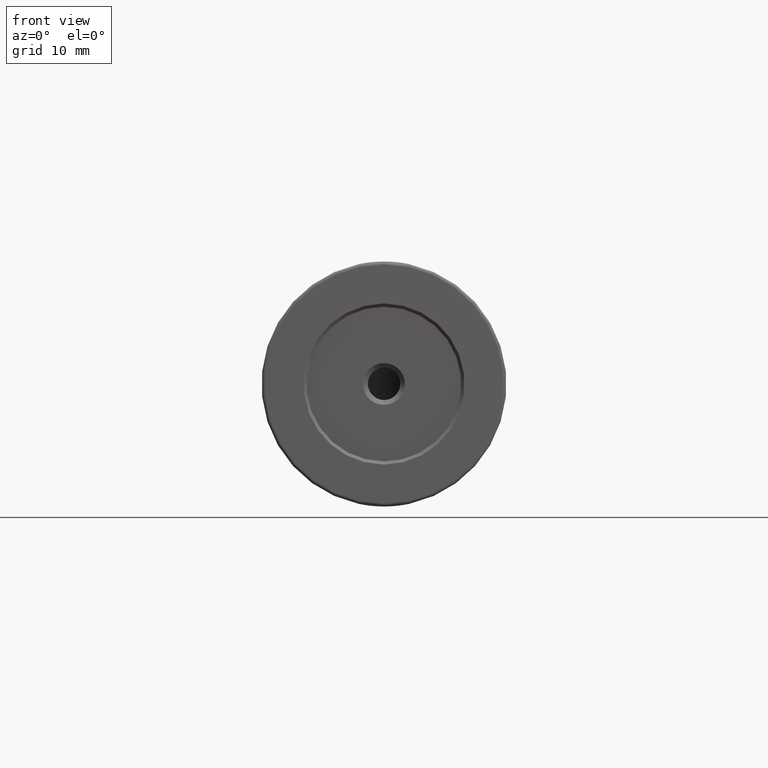
[diagram: clean part render]
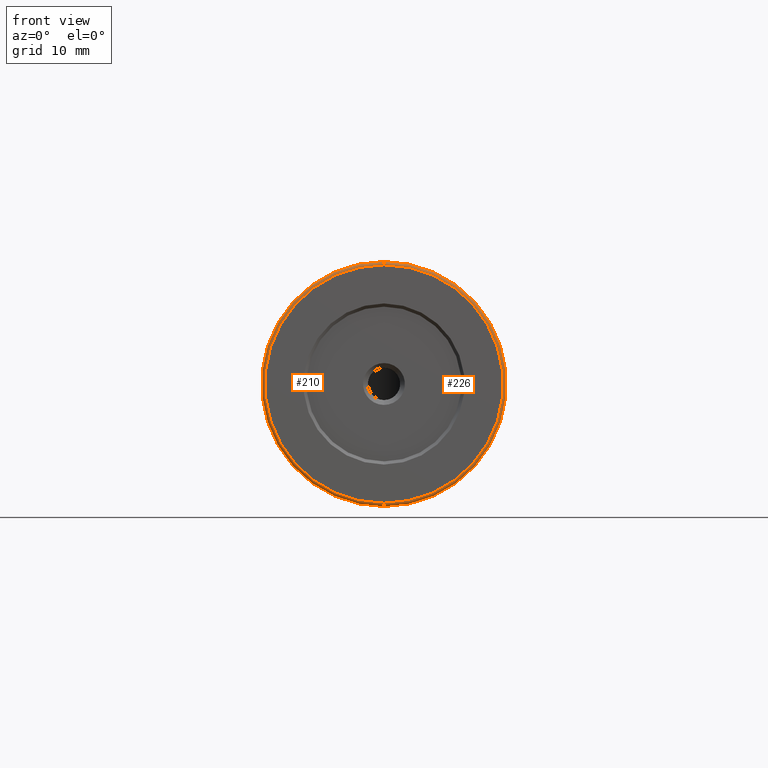
[diagram: same view with one multi-face feature highlighted, each face labeled with its STEP entity id]
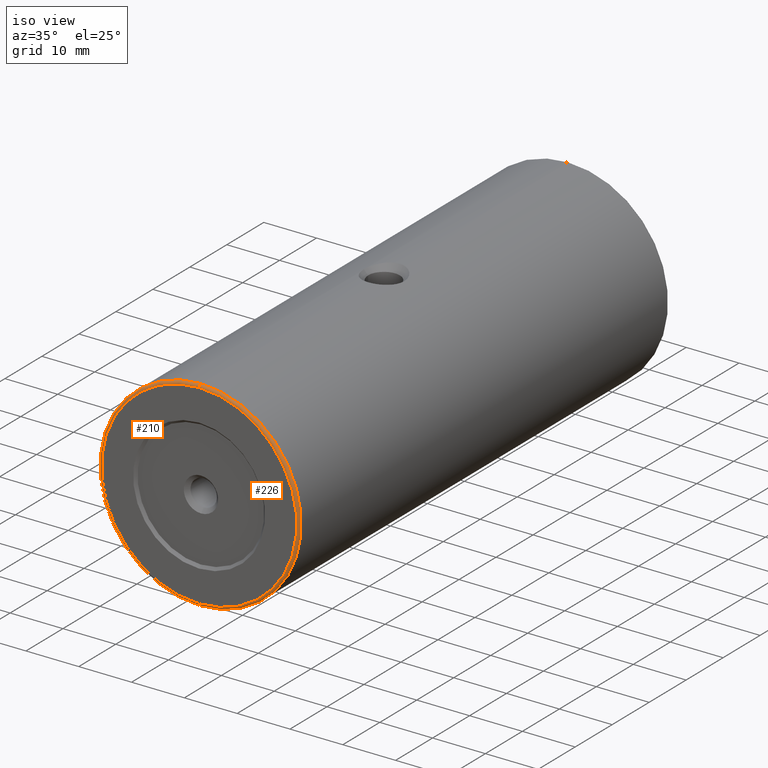
[diagram: same view with one multi-face feature highlighted, each face labeled with its STEP entity id]
A machine part, front view. The highlighted faces form ONE feature: a constant-radius fillet chain: 2 tangent blend faces with common blend radius 0.5 mm. The faces share edges in the B-rep.
A second angle (iso view) of the same feature is appended — it is thin or edge-on in the first view.
Their STEP definitions:
[1] entity #210 (Torus):
#4 = DIRECTION ( 'NONE',  ( 0.0000000000000000000, 0.0000000000000000000, 1.000000000000000000 ) ) ;
#76 = ORIENTED_EDGE ( 'NONE', *, *, #650, .F. ) ;
#78 = CARTESIAN_POINT ( 'NONE',  ( -85.22679983354142053, -53.76133999167429067, 400.0000000000000000 ) ) ;
#118 = DIRECTION ( 'NONE',  ( -1.000000000000000000, 0.0000000000000000000, 0.0000000000000000000 ) ) ;
#128 = CARTESIAN_POINT ( 'NONE',  ( -85.22679983354142053, -53.76133999167429067, 381.0000000000000000 ) ) ;
#179 = EDGE_LOOP ( 'NONE', ( #480, #184, #936, #76 ) ) ;
#184 = ORIENTED_EDGE ( 'NONE', *, *, #405, .F. ) ;
#197 = CARTESIAN_POINT ( 'NONE',  ( -85.22679983354142053, -53.76133999167429067, 381.5000000000000000 ) ) ;
#210 = ADVANCED_FACE ( 'NONE', ( #1009 ), #769, .T. ) ;
#242 = CIRCLE ( 'NONE', #379, 19.00000000000001776 ) ;
#287 = CARTESIAN_POINT ( 'NONE',  ( -85.22679983354142053, -54.26133999167429067, 418.5000000000000568 ) ) ;
#295 = CARTESIAN_POINT ( 'NONE',  ( -85.22679983354142053, -53.76133999167429067, 419.0000000000000568 ) ) ;
#320 = CIRCLE ( 'NONE', #550, 18.50000000000001776 ) ;
#346 = CIRCLE ( 'NONE', #916, 0.5000000000000004441 ) ;
#379 = AXIS2_PLACEMENT_3D ( 'NONE', #78, #395, #627 ) ;
#395 = DIRECTION ( 'NONE',  ( 0.0000000000000000000, 1.000000000000000000, 0.0000000000000000000 ) ) ;
#405 = EDGE_CURVE ( 'NONE', #908, #704, #320, .T. ) ;
#480 = ORIENTED_EDGE ( 'NONE', *, *, #845, .F. ) ;
#481 = CIRCLE ( 'NONE', #637, 0.5000000000000004441 ) ;
#486 = CARTESIAN_POINT ( 'NONE',  ( -85.22679983354142053, -54.26133999167429067, 400.0000000000000000 ) ) ;
#491 = CARTESIAN_POINT ( 'NONE',  ( -85.22679983354142053, -54.26133999167429067, 381.5000000000000000 ) ) ;
#494 = VERTEX_POINT ( 'NONE', #128 ) ;
#545 = VERTEX_POINT ( 'NONE', #295 ) ;
#549 = DIRECTION ( 'NONE',  ( 0.0000000000000000000, 1.000000000000000000, 0.0000000000000000000 ) ) ;
#550 = AXIS2_PLACEMENT_3D ( 'NONE', #486, #652, #958 ) ;
#561 = CARTESIAN_POINT ( 'NONE',  ( -85.22679983354142053, -53.76133999167429067, 400.0000000000000000 ) ) ;
#627 = DIRECTION ( 'NONE',  ( 0.0000000000000000000, 0.0000000000000000000, 1.000000000000000000 ) ) ;
#637 = AXIS2_PLACEMENT_3D ( 'NONE', #197, #899, #818 ) ;
#638 = AXIS2_PLACEMENT_3D ( 'NONE', #561, #549, #4 ) ;
#650 = EDGE_CURVE ( 'NONE', #494, #545, #242, .T. ) ;
#652 = DIRECTION ( 'NONE',  ( -0.0000000000000000000, -1.000000000000000000, -0.0000000000000000000 ) ) ;
#704 = VERTEX_POINT ( 'NONE', #491 ) ;
#769 = TOROIDAL_SURFACE ( 'NONE', #638, 18.50000000000000000, 0.5000000000000000000 ) ;
#818 = DIRECTION ( 'NONE',  ( 0.0000000000000000000, 0.0000000000000000000, -1.000000000000000000 ) ) ;
#845 = EDGE_CURVE ( 'NONE', #704, #494, #481, .T. ) ;
#847 = EDGE_CURVE ( 'NONE', #908, #545, #346, .T. ) ;
#893 = DIRECTION ( 'NONE',  ( 0.0000000000000000000, 0.0000000000000000000, 1.000000000000000000 ) ) ;
#899 = DIRECTION ( 'NONE',  ( 1.000000000000000000, -0.0000000000000000000, 1.224646799147353207E-16 ) ) ;
#908 = VERTEX_POINT ( 'NONE', #287 ) ;
#910 = CARTESIAN_POINT ( 'NONE',  ( -85.22679983354142053, -53.76133999167429067, 418.5000000000000568 ) ) ;
#916 = AXIS2_PLACEMENT_3D ( 'NONE', #910, #118, #893 ) ;
#936 = ORIENTED_EDGE ( 'NONE', *, *, #847, .T. ) ;
#958 = DIRECTION ( 'NONE',  ( 0.0000000000000000000, 0.0000000000000000000, 1.000000000000000000 ) ) ;
#1009 = FACE_OUTER_BOUND ( 'NONE', #179, .T. ) ;
[2] entity #226 (Torus):
#44 = ORIENTED_EDGE ( 'NONE', *, *, #845, .T. ) ;
#81 = DIRECTION ( 'NONE',  ( 0.0000000000000000000, 0.0000000000000000000, 1.000000000000000000 ) ) ;
#95 = TOROIDAL_SURFACE ( 'NONE', #146, 18.50000000000000000, 0.5000000000000000000 ) ;
#118 = DIRECTION ( 'NONE',  ( -1.000000000000000000, 0.0000000000000000000, 0.0000000000000000000 ) ) ;
#121 = EDGE_CURVE ( 'NONE', #704, #908, #599, .T. ) ;
#128 = CARTESIAN_POINT ( 'NONE',  ( -85.22679983354142053, -53.76133999167429067, 381.0000000000000000 ) ) ;
#146 = AXIS2_PLACEMENT_3D ( 'NONE', #318, #160, #81 ) ;
#148 = CARTESIAN_POINT ( 'NONE',  ( -85.22679983354142053, -53.76133999167429067, 400.0000000000000000 ) ) ;
#160 = DIRECTION ( 'NONE',  ( 0.0000000000000000000, 1.000000000000000000, 0.0000000000000000000 ) ) ;
#166 = DIRECTION ( 'NONE',  ( 0.0000000000000000000, 1.000000000000000000, 0.0000000000000000000 ) ) ;
#197 = CARTESIAN_POINT ( 'NONE',  ( -85.22679983354142053, -53.76133999167429067, 381.5000000000000000 ) ) ;
#226 = ADVANCED_FACE ( 'NONE', ( #860 ), #95, .T. ) ;
#286 = EDGE_CURVE ( 'NONE', #545, #494, #411, .T. ) ;
#287 = CARTESIAN_POINT ( 'NONE',  ( -85.22679983354142053, -54.26133999167429067, 418.5000000000000568 ) ) ;
#295 = CARTESIAN_POINT ( 'NONE',  ( -85.22679983354142053, -53.76133999167429067, 419.0000000000000568 ) ) ;
#318 = CARTESIAN_POINT ( 'NONE',  ( -85.22679983354142053, -53.76133999167429067, 400.0000000000000000 ) ) ;
#346 = CIRCLE ( 'NONE', #916, 0.5000000000000004441 ) ;
#411 = CIRCLE ( 'NONE', #931, 19.00000000000001776 ) ;
#481 = CIRCLE ( 'NONE', #637, 0.5000000000000004441 ) ;
#483 = DIRECTION ( 'NONE',  ( 0.0000000000000000000, 0.0000000000000000000, 1.000000000000000000 ) ) ;
#491 = CARTESIAN_POINT ( 'NONE',  ( -85.22679983354142053, -54.26133999167429067, 381.5000000000000000 ) ) ;
#494 = VERTEX_POINT ( 'NONE', #128 ) ;
#545 = VERTEX_POINT ( 'NONE', #295 ) ;
#548 = ORIENTED_EDGE ( 'NONE', *, *, #286, .F. ) ;
#557 = ORIENTED_EDGE ( 'NONE', *, *, #121, .F. ) ;
#566 = CARTESIAN_POINT ( 'NONE',  ( -85.22679983354142053, -54.26133999167429067, 400.0000000000000000 ) ) ;
#599 = CIRCLE ( 'NONE', #698, 18.50000000000001776 ) ;
#637 = AXIS2_PLACEMENT_3D ( 'NONE', #197, #899, #818 ) ;
#698 = AXIS2_PLACEMENT_3D ( 'NONE', #566, #719, #946 ) ;
#704 = VERTEX_POINT ( 'NONE', #491 ) ;
#719 = DIRECTION ( 'NONE',  ( -0.0000000000000000000, -1.000000000000000000, -0.0000000000000000000 ) ) ;
#806 = ORIENTED_EDGE ( 'NONE', *, *, #847, .F. ) ;
#818 = DIRECTION ( 'NONE',  ( 0.0000000000000000000, 0.0000000000000000000, -1.000000000000000000 ) ) ;
#845 = EDGE_CURVE ( 'NONE', #704, #494, #481, .T. ) ;
#847 = EDGE_CURVE ( 'NONE', #908, #545, #346, .T. ) ;
#860 = FACE_OUTER_BOUND ( 'NONE', #956, .T. ) ;
#893 = DIRECTION ( 'NONE',  ( 0.0000000000000000000, 0.0000000000000000000, 1.000000000000000000 ) ) ;
#899 = DIRECTION ( 'NONE',  ( 1.000000000000000000, -0.0000000000000000000, 1.224646799147353207E-16 ) ) ;
#908 = VERTEX_POINT ( 'NONE', #287 ) ;
#910 = CARTESIAN_POINT ( 'NONE',  ( -85.22679983354142053, -53.76133999167429067, 418.5000000000000568 ) ) ;
#916 = AXIS2_PLACEMENT_3D ( 'NONE', #910, #118, #893 ) ;
#931 = AXIS2_PLACEMENT_3D ( 'NONE', #148, #166, #483 ) ;
#946 = DIRECTION ( 'NONE',  ( 0.0000000000000000000, 0.0000000000000000000, 1.000000000000000000 ) ) ;
#956 = EDGE_LOOP ( 'NONE', ( #557, #44, #548, #806 ) ) ;